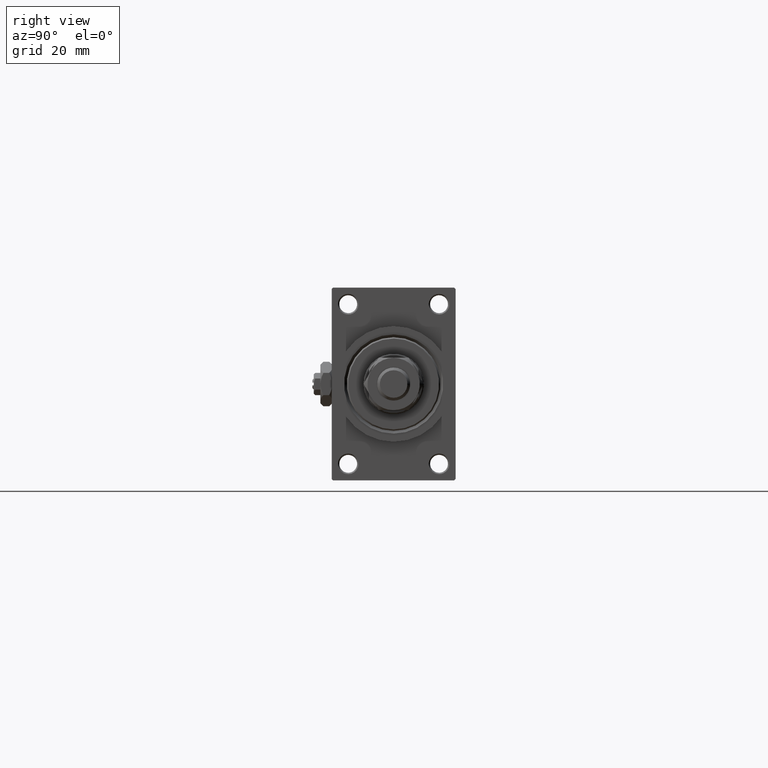
[diagram: clean part render]
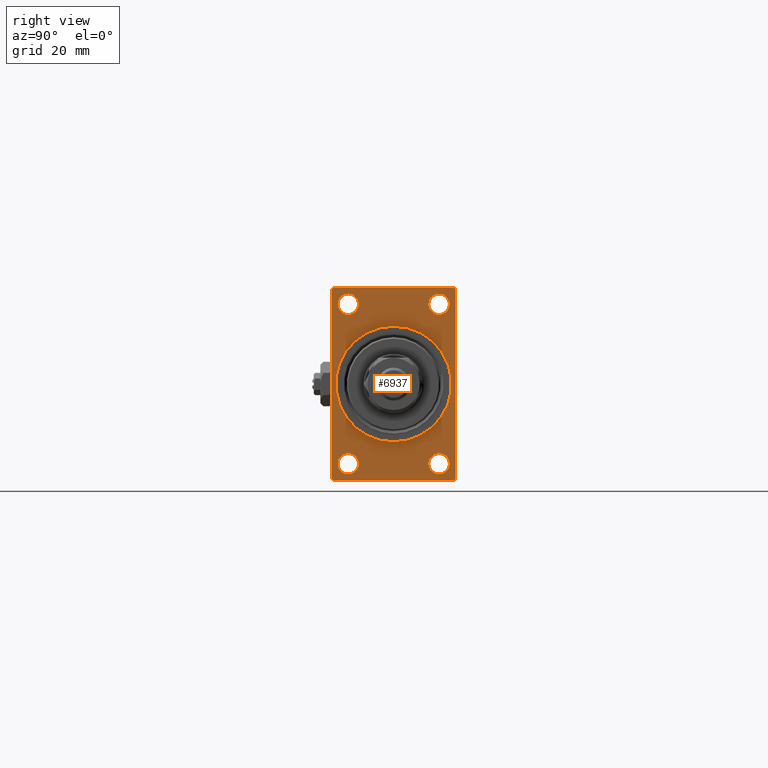
[diagram: same view with one face highlighted and labeled with its STEP entity id]
A machine part, right view. The second image highlights one B-rep face of the part: STEP entity #6937.
In plain terms, the highlighted planar face has unit normal (-1, 0, 0).
Its self-contained STEP definition (entity closure, byte-faithful):
#152 = ORIENTED_EDGE ( 'NONE', *, *, #26753, .F. ) ;
#1113 = EDGE_CURVE ( 'NONE', #47390, #14685, #23281, .T. ) ;
#1364 = DIRECTION ( 'NONE',  ( 0.000000000000000000, -1.000000000000000000, 0.000000000000000000 ) ) ;
#1817 = EDGE_CURVE ( 'NONE', #10748, #35416, #35437, .T. ) ;
#2583 = CARTESIAN_POINT ( 'NONE',  ( 173.0000000000000284, 0.000000000000000000, 0.000000000000000000 ) ) ;
#2686 = ORIENTED_EDGE ( 'NONE', *, *, #48676, .T. ) ;
#3287 = DIRECTION ( 'NONE',  ( -0.000000000000000000, 0.000000000000000000, 1.000000000000000000 ) ) ;
#3548 = FACE_BOUND ( 'NONE', #25690, .T. ) ;
#3907 = CARTESIAN_POINT ( 'NONE',  ( 173.0000000000000284, 22.49999999999999645, -34.50000000000000000 ) ) ;
#4175 = CARTESIAN_POINT ( 'NONE',  ( 173.0000000000000284, 22.49999999999999645, 35.00000000000000000 ) ) ;
#5097 = CIRCLE ( 'NONE', #32223, 3.750000000000166533 ) ;
#5230 = VERTEX_POINT ( 'NONE', #43518 ) ;
#5351 = DIRECTION ( 'NONE',  ( 0.000000000000000000, 0.000000000000000000, 1.000000000000000000 ) ) ;
#6253 = ORIENTED_EDGE ( 'NONE', *, *, #26777, .T. ) ;
#6698 = AXIS2_PLACEMENT_3D ( 'NONE', #16921, #32312, #49883 ) ;
#6701 = CARTESIAN_POINT ( 'NONE',  ( 173.0000000000000284, 16.50000000000000000, -28.99999999999999289 ) ) ;
#6937 = ADVANCED_FACE ( 'NONE', ( #3548, #34298, #42504, #14327, #19185, #26366 ), #7134, .F. ) ;
#7004 = CIRCLE ( 'NONE', #21730, 3.750000000000169642 ) ;
#7134 = PLANE ( 'NONE',  #19424 ) ;
#7903 = CARTESIAN_POINT ( 'NONE',  ( 173.0000000000000284, -22.50000000000000355, 35.00000000000000000 ) ) ;
#8249 = VERTEX_POINT ( 'NONE', #41128 ) ;
#8416 = ORIENTED_EDGE ( 'NONE', *, *, #49881, .T. ) ;
#8815 = CARTESIAN_POINT ( 'NONE',  ( 173.0000000000000284, 22.49999999999999645, -35.00000000000000000 ) ) ;
#9300 = LINE ( 'NONE', #40560, #31375 ) ;
#9662 = CARTESIAN_POINT ( 'NONE',  ( 173.0000000000000284, -16.50000000000000000, -25.24999999999982592 ) ) ;
#9842 = CARTESIAN_POINT ( 'NONE',  ( 173.0000000000000284, -16.50000000000000000, -32.75000000000017053 ) ) ;
#9939 = VERTEX_POINT ( 'NONE', #22483 ) ;
#9957 = EDGE_LOOP ( 'NONE', ( #45754, #15757, #30825, #6253, #20665, #10124, #23973, #10080 ) ) ;
#10080 = ORIENTED_EDGE ( 'NONE', *, *, #1113, .T. ) ;
#10124 = ORIENTED_EDGE ( 'NONE', *, *, #40436, .T. ) ;
#10301 = CARTESIAN_POINT ( 'NONE',  ( 173.0000000000000284, 2.571758278209441661E-15, -21.00000000000000000 ) ) ;
#10359 = DIRECTION ( 'NONE',  ( 0.000000000000000000, 0.000000000000000000, 1.000000000000000000 ) ) ;
#10426 = CARTESIAN_POINT ( 'NONE',  ( 173.0000000000000284, 16.50000000000000000, 29.00000000000000355 ) ) ;
#10748 = VERTEX_POINT ( 'NONE', #34341 ) ;
#12493 = AXIS2_PLACEMENT_3D ( 'NONE', #44644, #48501, #48010 ) ;
#12494 = AXIS2_PLACEMENT_3D ( 'NONE', #21649, #41133, #10359 ) ;
#12534 = VERTEX_POINT ( 'NONE', #34474 ) ;
#13115 = LINE ( 'NONE', #17451, #34654 ) ;
#13174 = ORIENTED_EDGE ( 'NONE', *, *, #45193, .T. ) ;
#13393 = DIRECTION ( 'NONE',  ( -0.000000000000000000, 0.7071067811865279218, 0.7071067811865671127 ) ) ;
#14268 = AXIS2_PLACEMENT_3D ( 'NONE', #6701, #37213, #22080 ) ;
#14327 = FACE_BOUND ( 'NONE', #28417, .T. ) ;
#14685 = VERTEX_POINT ( 'NONE', #43247 ) ;
#15126 = DIRECTION ( 'NONE',  ( -1.000000000000000000, -0.000000000000000000, -0.000000000000000000 ) ) ;
#15380 = DIRECTION ( 'NONE',  ( -1.000000000000000000, -0.000000000000000000, -0.000000000000000000 ) ) ;
#15412 = CARTESIAN_POINT ( 'NONE',  ( 173.0000000000000284, -22.50000000000000355, -34.50000000000000000 ) ) ;
#15444 = ORIENTED_EDGE ( 'NONE', *, *, #24182, .T. ) ;
#15502 = DIRECTION ( 'NONE',  ( 0.000000000000000000, 0.7071067811865474617, -0.7071067811865474617 ) ) ;
#15601 = VECTOR ( 'NONE', #1364, 1000.000000000000000 ) ;
#15683 = VERTEX_POINT ( 'NONE', #34551 ) ;
#15757 = ORIENTED_EDGE ( 'NONE', *, *, #40201, .T. ) ;
#15881 = DIRECTION ( 'NONE',  ( 0.000000000000000000, 0.000000000000000000, 1.000000000000000000 ) ) ;
#16095 = AXIS2_PLACEMENT_3D ( 'NONE', #43293, #15380, #15881 ) ;
#16295 = EDGE_CURVE ( 'NONE', #9939, #5230, #39825, .T. ) ;
#16523 = CIRCLE ( 'NONE', #6698, 3.750000000000166533 ) ;
#16764 = VERTEX_POINT ( 'NONE', #23316 ) ;
#16921 = CARTESIAN_POINT ( 'NONE',  ( 173.0000000000000284, -16.50000000000000000, -28.99999999999999289 ) ) ;
#17451 = CARTESIAN_POINT ( 'NONE',  ( 173.0000000000000284, 21.99999999999999645, 35.00000000000000000 ) ) ;
#17690 = VECTOR ( 'NONE', #23540, 1000.000000000000000 ) ;
#17973 = CARTESIAN_POINT ( 'NONE',  ( 173.0000000000000284, 0.000000000000000000, 0.000000000000000000 ) ) ;
#18732 = DIRECTION ( 'NONE',  ( 0.000000000000000000, -1.000000000000000000, 0.000000000000000000 ) ) ;
#19170 = EDGE_CURVE ( 'NONE', #24521, #50740, #47626, .T. ) ;
#19185 = FACE_BOUND ( 'NONE', #26974, .T. ) ;
#19225 = CARTESIAN_POINT ( 'NONE',  ( 173.0000000000000284, -16.50000000000000000, -28.99999999999999289 ) ) ;
#19422 = EDGE_CURVE ( 'NONE', #43281, #26404, #16523, .T. ) ;
#19424 = AXIS2_PLACEMENT_3D ( 'NONE', #41994, #34041, #3287 ) ;
#20451 = DIRECTION ( 'NONE',  ( 0.000000000000000000, 0.000000000000000000, -1.000000000000000000 ) ) ;
#20665 = ORIENTED_EDGE ( 'NONE', *, *, #1817, .F. ) ;
#20773 = AXIS2_PLACEMENT_3D ( 'NONE', #17973, #22068, #33361 ) ;
#21649 = CARTESIAN_POINT ( 'NONE',  ( 173.0000000000000284, 16.50000000000000000, -28.99999999999999289 ) ) ;
#21710 = EDGE_CURVE ( 'NONE', #14685, #30054, #27386, .T. ) ;
#21730 = AXIS2_PLACEMENT_3D ( 'NONE', #40470, #27673, #5351 ) ;
#22064 = CARTESIAN_POINT ( 'NONE',  ( 173.0000000000000284, 22.49999999999999645, 35.00000000000000000 ) ) ;
#22068 = DIRECTION ( 'NONE',  ( 1.000000000000000000, 0.000000000000000000, 0.000000000000000000 ) ) ;
#22080 = DIRECTION ( 'NONE',  ( 0.000000000000000000, 0.000000000000000000, 1.000000000000000000 ) ) ;
#22247 = AXIS2_PLACEMENT_3D ( 'NONE', #2583, #37454, #48740 ) ;
#22463 = DIRECTION ( 'NONE',  ( -1.000000000000000000, -0.000000000000000000, -0.000000000000000000 ) ) ;
#22483 = CARTESIAN_POINT ( 'NONE',  ( 173.0000000000000284, 22.00000000000002132, -35.00000000000000000 ) ) ;
#22569 = LINE ( 'NONE', #22064, #25548 ) ;
#23022 = CARTESIAN_POINT ( 'NONE',  ( 173.0000000000000284, -22.50000000000000355, 34.50000000000000000 ) ) ;
#23281 = LINE ( 'NONE', #23022, #17690 ) ;
#23316 = CARTESIAN_POINT ( 'NONE',  ( 173.0000000000000284, 16.50000000000000000, -32.75000000000017053 ) ) ;
#23408 = DIRECTION ( 'NONE',  ( 0.000000000000000000, 0.000000000000000000, -1.000000000000000000 ) ) ;
#23540 = DIRECTION ( 'NONE',  ( -0.000000000000000000, -0.7071067811865279218, -0.7071067811865671127 ) ) ;
#23649 = ORIENTED_EDGE ( 'NONE', *, *, #19170, .F. ) ;
#23973 = ORIENTED_EDGE ( 'NONE', *, *, #36979, .T. ) ;
#24182 = EDGE_CURVE ( 'NONE', #15683, #16764, #42782, .T. ) ;
#24240 = CARTESIAN_POINT ( 'NONE',  ( 173.0000000000000284, -16.50000000000000000, 32.75000000000017764 ) ) ;
#24521 = VERTEX_POINT ( 'NONE', #10301 ) ;
#25262 = VERTEX_POINT ( 'NONE', #45752 ) ;
#25527 = ORIENTED_EDGE ( 'NONE', *, *, #40590, .T. ) ;
#25548 = VECTOR ( 'NONE', #18732, 1000.000000000000000 ) ;
#25690 = EDGE_LOOP ( 'NONE', ( #8416, #36547 ) ) ;
#25970 = CARTESIAN_POINT ( 'NONE',  ( 173.0000000000000284, 0.000000000000000000, 21.00000000000000000 ) ) ;
#26265 = VERTEX_POINT ( 'NONE', #24240 ) ;
#26366 = FACE_OUTER_BOUND ( 'NONE', #9957, .T. ) ;
#26404 = VERTEX_POINT ( 'NONE', #9842 ) ;
#26566 = CIRCLE ( 'NONE', #42107, 3.750000000000169642 ) ;
#26753 = EDGE_CURVE ( 'NONE', #50740, #24521, #37100, .T. ) ;
#26777 = EDGE_CURVE ( 'NONE', #9939, #35416, #9300, .T. ) ;
#26910 = CARTESIAN_POINT ( 'NONE',  ( 173.0000000000000284, -16.50000000000000000, 25.24999999999984368 ) ) ;
#26974 = EDGE_LOOP ( 'NONE', ( #152, #23649 ) ) ;
#27386 = LINE ( 'NONE', #7903, #45915 ) ;
#27673 = DIRECTION ( 'NONE',  ( -1.000000000000000000, -0.000000000000000000, -0.000000000000000000 ) ) ;
#28417 = EDGE_LOOP ( 'NONE', ( #2686, #39376 ) ) ;
#28754 = DIRECTION ( 'NONE',  ( 0.000000000000000000, -0.7071067811865474617, 0.7071067811865474617 ) ) ;
#28793 = EDGE_LOOP ( 'NONE', ( #13174, #15444 ) ) ;
#30054 = VERTEX_POINT ( 'NONE', #15412 ) ;
#30073 = VECTOR ( 'NONE', #23408, 1000.000000000000000 ) ;
#30762 = DIRECTION ( 'NONE',  ( 0.000000000000000000, 0.000000000000000000, 1.000000000000000000 ) ) ;
#30825 = ORIENTED_EDGE ( 'NONE', *, *, #16295, .F. ) ;
#31375 = VECTOR ( 'NONE', #13393, 1000.000000000000000 ) ;
#32223 = AXIS2_PLACEMENT_3D ( 'NONE', #19225, #15126, #30762 ) ;
#32312 = DIRECTION ( 'NONE',  ( -1.000000000000000000, -0.000000000000000000, -0.000000000000000000 ) ) ;
#32547 = EDGE_LOOP ( 'NONE', ( #25527, #42956 ) ) ;
#33361 = DIRECTION ( 'NONE',  ( 0.000000000000000000, 0.000000000000000000, -1.000000000000000000 ) ) ;
#34041 = DIRECTION ( 'NONE',  ( -1.000000000000000000, 0.000000000000000000, -0.000000000000000000 ) ) ;
#34298 = FACE_BOUND ( 'NONE', #32547, .T. ) ;
#34341 = CARTESIAN_POINT ( 'NONE',  ( 173.0000000000000284, 22.49999999999999645, 34.50000000000000000 ) ) ;
#34452 = CARTESIAN_POINT ( 'NONE',  ( 173.0000000000000284, -22.00000000000000355, -35.00000000000000000 ) ) ;
#34474 = CARTESIAN_POINT ( 'NONE',  ( 173.0000000000000284, 16.50000000000000000, 25.24999999999983658 ) ) ;
#34551 = CARTESIAN_POINT ( 'NONE',  ( 173.0000000000000284, 16.50000000000000000, -25.24999999999982592 ) ) ;
#34654 = VECTOR ( 'NONE', #28754, 1000.000000000000114 ) ;
#34974 = LINE ( 'NONE', #34452, #38647 ) ;
#35416 = VERTEX_POINT ( 'NONE', #3907 ) ;
#35437 = LINE ( 'NONE', #4175, #30073 ) ;
#36547 = ORIENTED_EDGE ( 'NONE', *, *, #37799, .T. ) ;
#36979 = EDGE_CURVE ( 'NONE', #8249, #47390, #22569, .T. ) ;
#37064 = CIRCLE ( 'NONE', #12493, 3.750000000000166533 ) ;
#37100 = CIRCLE ( 'NONE', #20773, 21.00000000000000000 ) ;
#37213 = DIRECTION ( 'NONE',  ( -1.000000000000000000, -0.000000000000000000, -0.000000000000000000 ) ) ;
#37454 = DIRECTION ( 'NONE',  ( 1.000000000000000000, 0.000000000000000000, 0.000000000000000000 ) ) ;
#37799 = EDGE_CURVE ( 'NONE', #26265, #39463, #37064, .T. ) ;
#38096 = DIRECTION ( 'NONE',  ( 0.000000000000000000, 0.000000000000000000, 1.000000000000000000 ) ) ;
#38647 = VECTOR ( 'NONE', #15502, 1000.000000000000114 ) ;
#38829 = CIRCLE ( 'NONE', #14268, 3.750000000000166533 ) ;
#39376 = ORIENTED_EDGE ( 'NONE', *, *, #45477, .T. ) ;
#39463 = VERTEX_POINT ( 'NONE', #26910 ) ;
#39825 = LINE ( 'NONE', #8815, #15601 ) ;
#40201 = EDGE_CURVE ( 'NONE', #30054, #5230, #34974, .T. ) ;
#40436 = EDGE_CURVE ( 'NONE', #10748, #8249, #13115, .T. ) ;
#40470 = CARTESIAN_POINT ( 'NONE',  ( 173.0000000000000284, 16.50000000000000000, 29.00000000000000355 ) ) ;
#40560 = CARTESIAN_POINT ( 'NONE',  ( 173.0000000000000284, 22.49999999999999645, -34.50000000000000000 ) ) ;
#40590 = EDGE_CURVE ( 'NONE', #26404, #43281, #5097, .T. ) ;
#41128 = CARTESIAN_POINT ( 'NONE',  ( 173.0000000000000284, 21.99999999999999645, 35.00000000000000000 ) ) ;
#41133 = DIRECTION ( 'NONE',  ( -1.000000000000000000, -0.000000000000000000, -0.000000000000000000 ) ) ;
#41994 = CARTESIAN_POINT ( 'NONE',  ( 173.0000000000000284, 0.000000000000000000, 0.000000000000000000 ) ) ;
#42107 = AXIS2_PLACEMENT_3D ( 'NONE', #10426, #22463, #38096 ) ;
#42504 = FACE_BOUND ( 'NONE', #28793, .T. ) ;
#42782 = CIRCLE ( 'NONE', #12494, 3.750000000000166533 ) ;
#42956 = ORIENTED_EDGE ( 'NONE', *, *, #19422, .T. ) ;
#43247 = CARTESIAN_POINT ( 'NONE',  ( 173.0000000000000284, -22.50000000000000355, 34.50000000000000000 ) ) ;
#43281 = VERTEX_POINT ( 'NONE', #9662 ) ;
#43293 = CARTESIAN_POINT ( 'NONE',  ( 173.0000000000000284, -16.50000000000000000, 29.00000000000000711 ) ) ;
#43518 = CARTESIAN_POINT ( 'NONE',  ( 173.0000000000000284, -21.99999999999998934, -35.00000000000000000 ) ) ;
#43849 = CARTESIAN_POINT ( 'NONE',  ( 173.0000000000000284, -22.00000000000001776, 35.00000000000000000 ) ) ;
#44644 = CARTESIAN_POINT ( 'NONE',  ( 173.0000000000000284, -16.50000000000000000, 29.00000000000000711 ) ) ;
#44734 = CIRCLE ( 'NONE', #16095, 3.750000000000166533 ) ;
#45193 = EDGE_CURVE ( 'NONE', #16764, #15683, #38829, .T. ) ;
#45477 = EDGE_CURVE ( 'NONE', #25262, #12534, #26566, .T. ) ;
#45752 = CARTESIAN_POINT ( 'NONE',  ( 173.0000000000000284, 16.50000000000000000, 32.75000000000017764 ) ) ;
#45754 = ORIENTED_EDGE ( 'NONE', *, *, #21710, .T. ) ;
#45915 = VECTOR ( 'NONE', #20451, 1000.000000000000000 ) ;
#47390 = VERTEX_POINT ( 'NONE', #43849 ) ;
#47626 = CIRCLE ( 'NONE', #22247, 21.00000000000000000 ) ;
#48010 = DIRECTION ( 'NONE',  ( 0.000000000000000000, 0.000000000000000000, 1.000000000000000000 ) ) ;
#48501 = DIRECTION ( 'NONE',  ( -1.000000000000000000, -0.000000000000000000, -0.000000000000000000 ) ) ;
#48676 = EDGE_CURVE ( 'NONE', #12534, #25262, #7004, .T. ) ;
#48740 = DIRECTION ( 'NONE',  ( 0.000000000000000000, 0.000000000000000000, -1.000000000000000000 ) ) ;
#49881 = EDGE_CURVE ( 'NONE', #39463, #26265, #44734, .T. ) ;
#49883 = DIRECTION ( 'NONE',  ( 0.000000000000000000, 0.000000000000000000, 1.000000000000000000 ) ) ;
#50740 = VERTEX_POINT ( 'NONE', #25970 ) ;